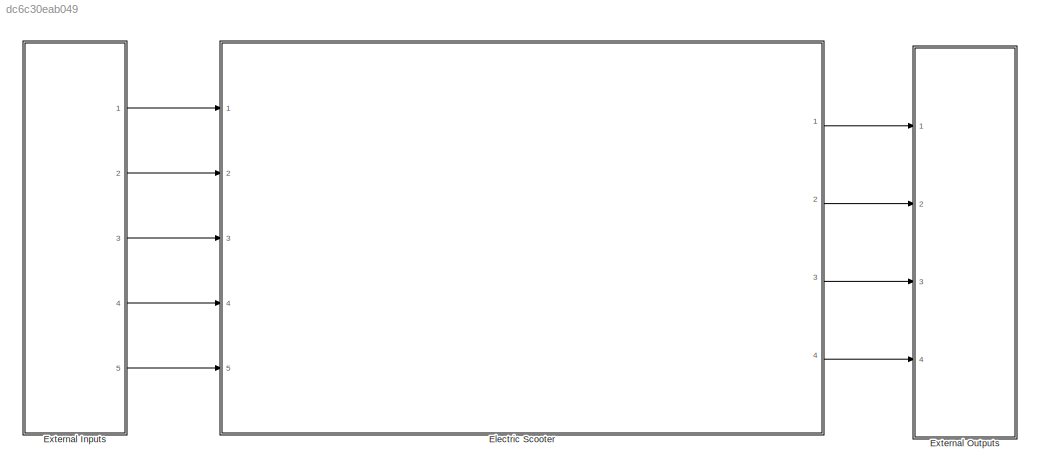
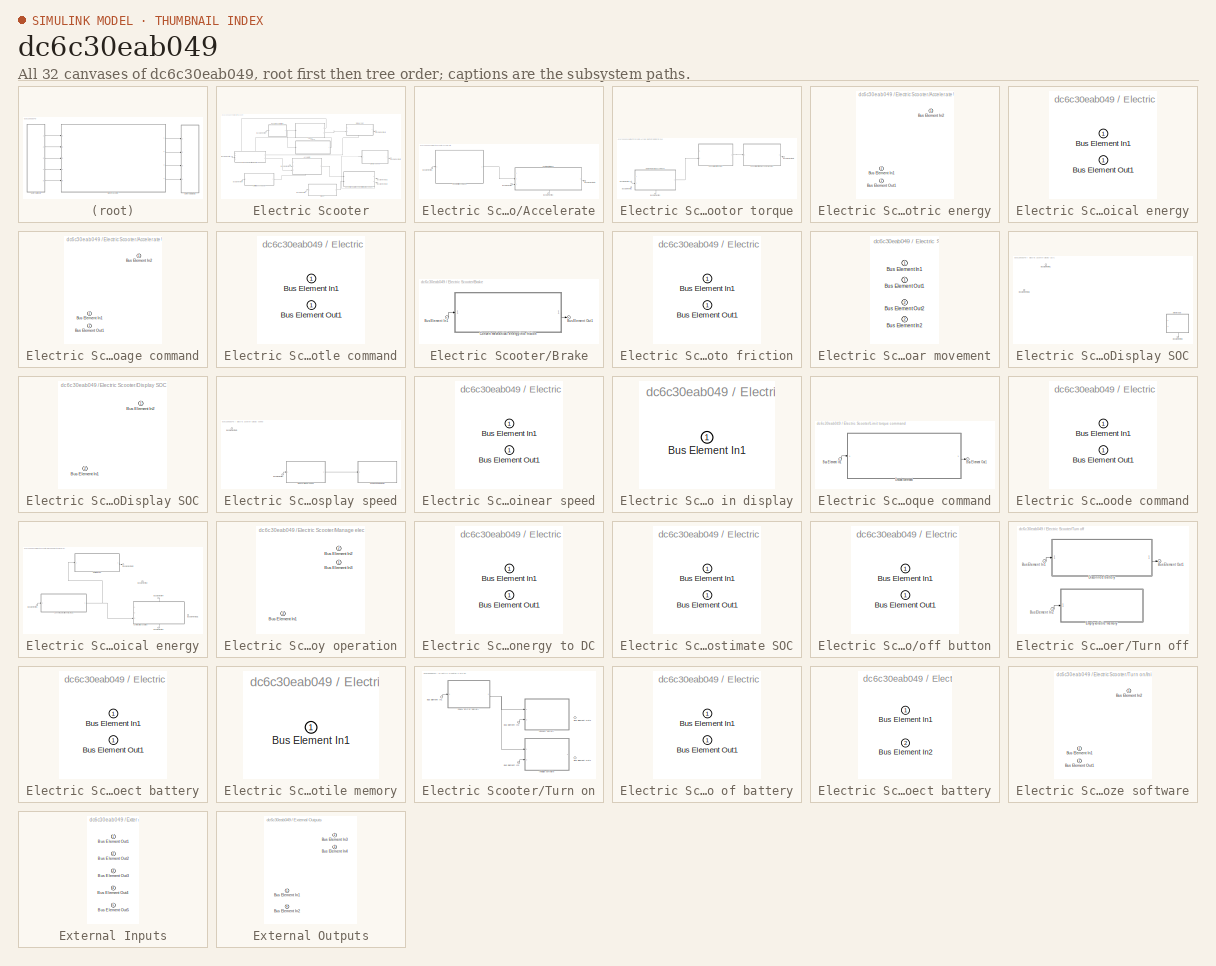
[diagram: thumbnail index - all 32 canvases of the model, root first then tree order]
MODEL slx_dc6c30eab049
KIND model
CONFIG AbsTol = auto
CONFIG EnableMultiTasking = off
CONFIG FixedStep = auto
CONFIG MaxStep = auto
CONFIG MinStep = auto
CONFIG RelTol = 1e-3
CONFIG SampleTimeConstraint = Unconstrained
CONFIG SolverName = VariableStepAuto
CONFIG StartTime = 0.0
CONFIG StopTime = 10.0
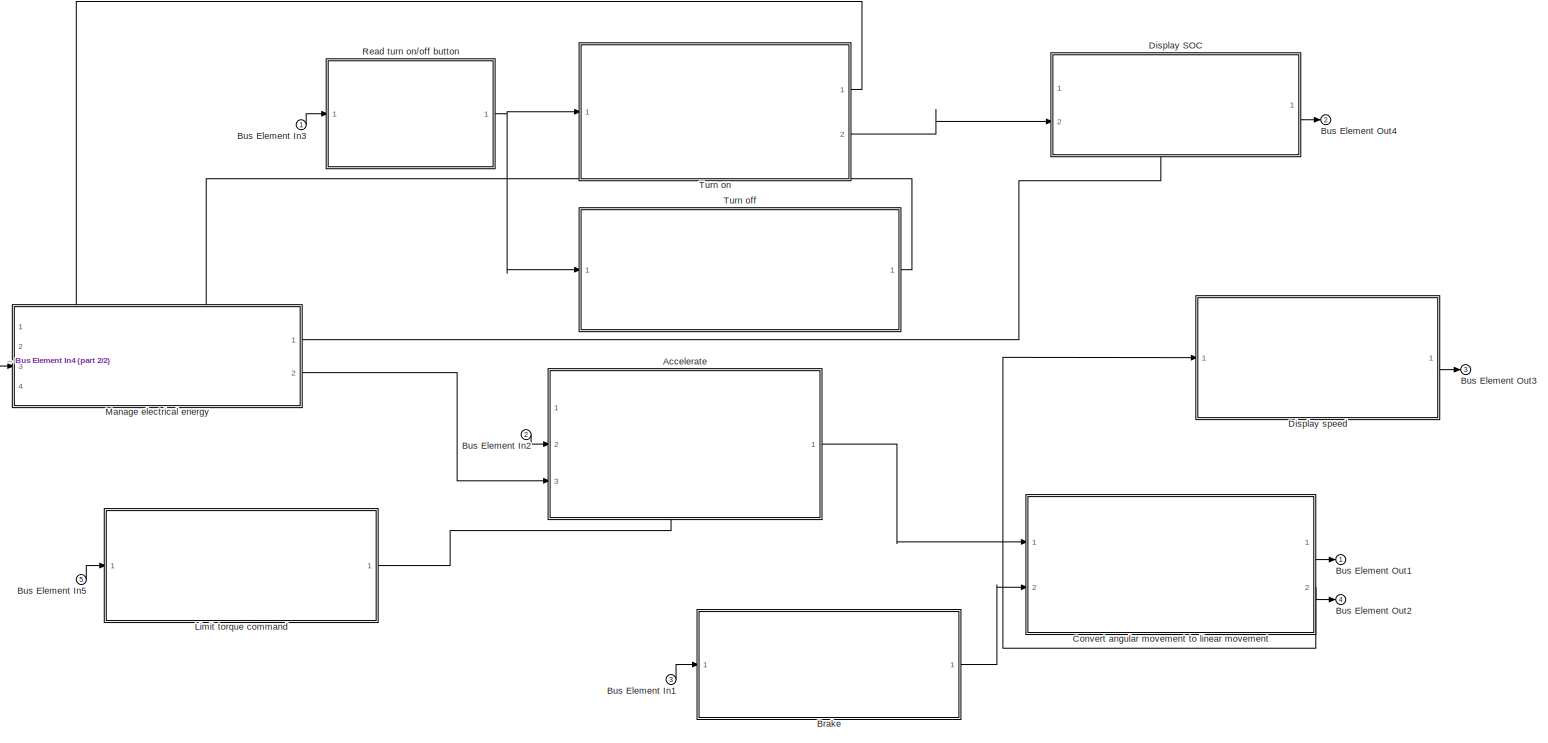
[diagram: Electric Scooter - part 1/2, most of the canvas]
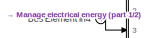
[diagram: Electric Scooter - part 2/2, middle left region]
BLOCK [SubSystem] Electric Scooter
  PortSchema = {"entries":[{"content":{"headerSize":26,"margin":15,"minimumSpacing":25,"sides":[{"content":{"connectorIds":["In1","In2","In3","In4","In5"]},"type":"ConnectorPlacement.EquallySpacedRectSide","uuid":"77baa894-24de-420f-bb05-d29ca1eca7c3"},{"content":{"connectorIds":["Out1","Out2","Out3","Out4"],"side":"RIGHT"},"type":"ConnectorPlacement.EquallySpacedRectSide","uuid":"fcd1216d-879c-477b-b249-00119a9...<+333ch>
  Ports = [5, 4]
  RequestExecContextInheritance = off
BLOCK [SubSystem] Electric Scooter/Accelerate
  PortSchema = {"entries":[{"content":{"headerSize":26,"margin":15,"minimumSpacing":25,"sides":[{"content":{"connectorIds":["In2","In3"]},"type":"ConnectorPlacement.EquallySpacedRectSide","uuid":"77baa894-24de-420f-bb05-d29ca1eca7c3"},{"content":{"connectorIds":["Out1"],"side":"RIGHT"},"type":"ConnectorPlacement.EquallySpacedRectSide","uuid":"fcd1216d-879c-477b-b249-00119a9fcd22"},{"content":{"connectorIds":[],"...<+443ch>
  Ports = [3, 1]
  RequestExecContextInheritance = off
BLOCK [Inport] Electric Scooter/Accelerate/Bus Element In1
  Port = 2
BLOCK [Inport] Electric Scooter/Accelerate/Bus Element In2
  Port = 3
BLOCK [Inport] Electric Scooter/Accelerate/Bus Element In3
BLOCK [Outport] Electric Scooter/Accelerate/Bus Element Out1
BLOCK [SubSystem] Electric Scooter/Accelerate/Control motor torque
  PortSchema = {"entries":[{"content":{"headerSize":26,"margin":15,"minimumSpacing":25,"sides":[{"content":{"connectorIds":["In2","In3"]},"type":"ConnectorPlacement.EquallySpacedRectSide","uuid":"77baa894-24de-420f-bb05-d29ca1eca7c3"},{"content":{"connectorIds":["Out1"],"side":"RIGHT"},"type":"ConnectorPlacement.EquallySpacedRectSide","uuid":"fcd1216d-879c-477b-b249-00119a9fcd22"},{"content":{"connectorIds":[],"...<+443ch>
  Ports = [3, 1]
  RequestExecContextInheritance = off
BLOCK [Inport] Electric Scooter/Accelerate/Control motor torque/Bus Element In1
  Port = 2
BLOCK [Inport] Electric Scooter/Accelerate/Control motor torque/Bus Element In2
  Port = 3
BLOCK [Inport] Electric Scooter/Accelerate/Control motor torque/Bus Element In3
BLOCK [Outport] Electric Scooter/Accelerate/Control motor torque/Bus Element Out1
BLOCK [SubSystem] Electric Scooter/Accelerate/Control motor torque/Convert electric energy
  PortSchema = {"entries":[{"content":{"headerSize":26,"margin":15,"minimumSpacing":25,"sides":[{"content":{"connectorIds":["In1","In2"]},"type":"ConnectorPlacement.EquallySpacedRectSide","uuid":"77baa894-24de-420f-bb05-d29ca1eca7c3"},{"content":{"connectorIds":["Out1"],"side":"RIGHT"},"type":"ConnectorPlacement.EquallySpacedRectSide","uuid":"fcd1216d-879c-477b-b249-00119a9fcd22"},{"content":{"connectorIds":[],"...<+294ch>
  Ports = [2, 1]
  RequestExecContextInheritance = off
BLOCK [Inport] Electric Scooter/Accelerate/Control motor torque/Convert electric energy/Bus Element In1
  Port = 2
BLOCK [Inport] Electric Scooter/Accelerate/Control motor torque/Convert electric energy/Bus Element In2
BLOCK [Outport] Electric Scooter/Accelerate/Control motor torque/Convert electric energy/Bus Element Out1
BLOCK [SubSystem] Electric Scooter/Accelerate/Control motor torque/Convert electric to mechanical energy
  PortSchema = {"entries":[{"content":{"headerSize":26,"margin":15,"minimumSpacing":25,"sides":[{"content":{"connectorIds":["In1"]},"type":"ConnectorPlacement.EquallySpacedRectSide","uuid":"77baa894-24de-420f-bb05-d29ca1eca7c3"},{"content":{"connectorIds":["Out1"],"side":"RIGHT"},"type":"ConnectorPlacement.EquallySpacedRectSide","uuid":"fcd1216d-879c-477b-b249-00119a9fcd22"},{"content":{"connectorIds":[],"side":...<+432ch>
  Ports = [1, 1]
  RequestExecContextInheritance = off
BLOCK [Inport] Electric Scooter/Accelerate/Control motor torque/Convert electric to mechanical energy/Bus Element In1
BLOCK [Outport] Electric Scooter/Accelerate/Control motor torque/Convert electric to mechanical energy/Bus Element Out1
BLOCK [SubSystem] Electric Scooter/Accelerate/Control motor torque/Obtain motor voltage command
  PortSchema = {"entries":[{"content":{"headerSize":26,"margin":15,"minimumSpacing":25,"sides":[{"content":{"connectorIds":["In2"]},"type":"ConnectorPlacement.EquallySpacedRectSide","uuid":"77baa894-24de-420f-bb05-d29ca1eca7c3"},{"content":{"connectorIds":["Out1"],"side":"RIGHT"},"type":"ConnectorPlacement.EquallySpacedRectSide","uuid":"fcd1216d-879c-477b-b249-00119a9fcd22"},{"content":{"connectorIds":[],"side":...<+437ch>
  Ports = [2, 1]
  RequestExecContextInheritance = off
BLOCK [Inport] Electric Scooter/Accelerate/Control motor torque/Obtain motor voltage command/Bus Element In1
  Port = 2
BLOCK [Inport] Electric Scooter/Accelerate/Control motor torque/Obtain motor voltage command/Bus Element In2
BLOCK [Outport] Electric Scooter/Accelerate/Control motor torque/Obtain motor voltage command/Bus Element Out1
BLOCK [SubSystem] Electric Scooter/Accelerate/Read throttle command
  PortSchema = {"entries":[{"content":{"headerSize":26,"margin":15,"minimumSpacing":25,"sides":[{"content":{"connectorIds":["In1"]},"type":"ConnectorPlacement.EquallySpacedRectSide","uuid":"77baa894-24de-420f-bb05-d29ca1eca7c3"},{"content":{"connectorIds":["Out1"],"side":"RIGHT"},"type":"ConnectorPlacement.EquallySpacedRectSide","uuid":"fcd1216d-879c-477b-b249-00119a9fcd22"},{"content":{"connectorIds":[],"side":...<+288ch>  <repeated x12 — deduplicated; at blocks: Read throttle command, Brake, Convert mechanical energy into friction, Display speed, Measure linear speed, Limit torque command, Decode command, Convert AC electric energy to DC, Estimate SOC, Read turn on/off button, Turn off, Disconnect battery>
  Ports = [1, 1]
  RequestExecContextInheritance = off
BLOCK [Inport] Electric Scooter/Accelerate/Read throttle command/Bus Element In1
BLOCK [Outport] Electric Scooter/Accelerate/Read throttle command/Bus Element Out1
BLOCK [SubSystem] Electric Scooter/Brake
  Ports = [1, 1]
  RequestExecContextInheritance = off
BLOCK [Inport] Electric Scooter/Brake/Bus Element In1
BLOCK [Outport] Electric Scooter/Brake/Bus Element Out1
BLOCK [SubSystem] Electric Scooter/Brake/Convert mechanical energy into friction
  Ports = [1, 1]
  RequestExecContextInheritance = off
BLOCK [Inport] Electric Scooter/Brake/Convert mechanical energy into friction/Bus Element In1
BLOCK [Outport] Electric Scooter/Brake/Convert mechanical energy into friction/Bus Element Out1
BLOCK [Inport] Electric Scooter/Bus Element In1
  Port = 3
BLOCK [Inport] Electric Scooter/Bus Element In2
  Port = 2
BLOCK [Inport] Electric Scooter/Bus Element In3
BLOCK [Inport] Electric Scooter/Bus Element In4
  Port = 4
BLOCK [Inport] Electric Scooter/Bus Element In5
  Port = 5
BLOCK [Outport] Electric Scooter/Bus Element Out1
BLOCK [Outport] Electric Scooter/Bus Element Out2
  Port = 4
BLOCK [Outport] Electric Scooter/Bus Element Out3
  Port = 3
BLOCK [Outport] Electric Scooter/Bus Element Out4
  Port = 2
BLOCK [SubSystem] Electric Scooter/Convert angular movement to linear movement
  PortSchema = {"entries":[{"content":{"headerSize":26,"margin":15,"minimumSpacing":25,"sides":[{"content":{"connectorIds":["In1","In2"]},"type":"ConnectorPlacement.EquallySpacedRectSide","uuid":"77baa894-24de-420f-bb05-d29ca1eca7c3"},{"content":{"connectorIds":["Out1","Out2"],"side":"RIGHT"},"type":"ConnectorPlacement.EquallySpacedRectSide","uuid":"fcd1216d-879c-477b-b249-00119a9fcd22"},{"content":{"connectorId...<+301ch>
  Ports = [2, 2]
  RequestExecContextInheritance = off
BLOCK [Inport] Electric Scooter/Convert angular movement to linear movement/Bus Element In1
BLOCK [Inport] Electric Scooter/Convert angular movement to linear movement/Bus Element In2
  Port = 2
BLOCK [Outport] Electric Scooter/Convert angular movement to linear movement/Bus Element Out1
BLOCK [Outport] Electric Scooter/Convert angular movement to linear movement/Bus Element Out2
  Port = 2
BLOCK [SubSystem] Electric Scooter/Display SOC
  PortSchema = {"entries":[{"content":{"headerSize":26,"margin":15,"minimumSpacing":25,"sides":[{"content":{"connectorIds":["In2"]},"type":"ConnectorPlacement.EquallySpacedRectSide","uuid":"77baa894-24de-420f-bb05-d29ca1eca7c3"},{"content":{"connectorIds":["Out1"],"side":"RIGHT"},"type":"ConnectorPlacement.EquallySpacedRectSide","uuid":"fcd1216d-879c-477b-b249-00119a9fcd22"},{"content":{"connectorIds":[],"side":...<+437ch>
  Ports = [2, 1]
  RequestExecContextInheritance = off
BLOCK [Inport] Electric Scooter/Display SOC/Bus Element In1
  Port = 2
BLOCK [Inport] Electric Scooter/Display SOC/Bus Element In2
BLOCK [Outport] Electric Scooter/Display SOC/Bus Element Out1
BLOCK [SubSystem] Electric Scooter/Display SOC/Display SOC
  PortSchema = {"entries":[{"content":{"headerSize":26,"margin":15,"minimumSpacing":25,"sides":[{"content":{"connectorIds":["In2"]},"type":"ConnectorPlacement.EquallySpacedRectSide","uuid":"77baa894-24de-420f-bb05-d29ca1eca7c3"},{"content":{"connectorIds":[],"side":"RIGHT"},"type":"ConnectorPlacement.EquallySpacedRectSide","uuid":"fcd1216d-879c-477b-b249-00119a9fcd22"},{"content":{"connectorIds":[],"side":"TOP"}...<+431ch>
  Ports = [2]
  RequestExecContextInheritance = off
BLOCK [Inport] Electric Scooter/Display SOC/Display SOC/Bus Element In1
  Port = 2
BLOCK [Inport] Electric Scooter/Display SOC/Display SOC/Bus Element In2
BLOCK [SubSystem] Electric Scooter/Display speed
  Ports = [1, 1]
  RequestExecContextInheritance = off
BLOCK [Inport] Electric Scooter/Display speed/Bus Element In1
BLOCK [Outport] Electric Scooter/Display speed/Bus Element Out1
BLOCK [SubSystem] Electric Scooter/Display speed/Measure linear speed
  Ports = [1, 1]
  RequestExecContextInheritance = off
BLOCK [Inport] Electric Scooter/Display speed/Measure linear speed/Bus Element In1
BLOCK [Outport] Electric Scooter/Display speed/Measure linear speed/Bus Element Out1
BLOCK [SubSystem] Electric Scooter/Display speed/Show speed in display
  PortSchema = {"entries":[{"content":{"headerSize":26,"margin":15,"minimumSpacing":25,"sides":[{"content":{"connectorIds":["In1"]},"type":"ConnectorPlacement.EquallySpacedRectSide","uuid":"77baa894-24de-420f-bb05-d29ca1eca7c3"},{"content":{"connectorIds":[],"side":"RIGHT"},"type":"ConnectorPlacement.EquallySpacedRectSide","uuid":"fcd1216d-879c-477b-b249-00119a9fcd22"},{"content":{"connectorIds":[],"side":"TOP"}...<+282ch>
  Ports = [1]
  RequestExecContextInheritance = off
BLOCK [Inport] Electric Scooter/Display speed/Show speed in display/Bus Element In1
BLOCK [SubSystem] Electric Scooter/Limit torque command
  Ports = [1, 1]
  RequestExecContextInheritance = off
BLOCK [Inport] Electric Scooter/Limit torque command/Bus Element In1
BLOCK [Outport] Electric Scooter/Limit torque command/Bus Element Out1
BLOCK [SubSystem] Electric Scooter/Limit torque command/Decode command
  Ports = [1, 1]
  RequestExecContextInheritance = off
BLOCK [Inport] Electric Scooter/Limit torque command/Decode command/Bus Element In1
BLOCK [Outport] Electric Scooter/Limit torque command/Decode command/Bus Element Out1
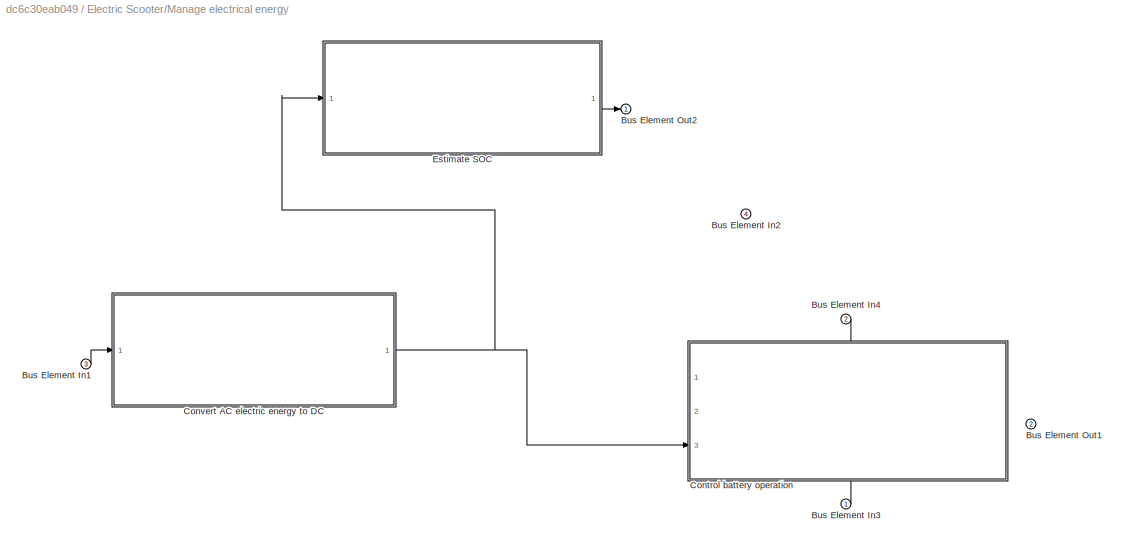
BLOCK [SubSystem] Electric Scooter/Manage electrical energy
  PortSchema = {"entries":[{"content":{"headerSize":26,"margin":15,"minimumSpacing":25,"sides":[{"content":{"connectorIds":["In3","In4"]},"type":"ConnectorPlacement.EquallySpacedRectSide","uuid":"77baa894-24de-420f-bb05-d29ca1eca7c3"},{"content":{"connectorIds":["Out1","Out2"],"side":"RIGHT"},"type":"ConnectorPlacement.EquallySpacedRectSide","uuid":"fcd1216d-879c-477b-b249-00119a9fcd22"},{"content":{"connectorId...<+312ch>
  Ports = [4, 2]
  RequestExecContextInheritance = off
BLOCK [Inport] Electric Scooter/Manage electrical energy/Bus Element In1
  Port = 3
BLOCK [Inport] Electric Scooter/Manage electrical energy/Bus Element In2
  Port = 4
BLOCK [Inport] Electric Scooter/Manage electrical energy/Bus Element In3
BLOCK [Inport] Electric Scooter/Manage electrical energy/Bus Element In4
  Port = 2
BLOCK [Outport] Electric Scooter/Manage electrical energy/Bus Element Out1
  Port = 2
BLOCK [Outport] Electric Scooter/Manage electrical energy/Bus Element Out2
BLOCK [SubSystem] Electric Scooter/Manage electrical energy/Control battery operation
  PortSchema = {"entries":[{"content":{"headerSize":26,"margin":15,"minimumSpacing":25,"sides":[{"content":{"connectorIds":["In3"]},"type":"ConnectorPlacement.EquallySpacedRectSide","uuid":"77baa894-24de-420f-bb05-d29ca1eca7c3"},{"content":{"connectorIds":[],"side":"RIGHT"},"type":"ConnectorPlacement.EquallySpacedRectSide","uuid":"fcd1216d-879c-477b-b249-00119a9fcd22"},{"content":{"connectorIds":["In1"],"side":"...<+436ch>
  Ports = [3]
  RequestExecContextInheritance = off
BLOCK [Inport] Electric Scooter/Manage electrical energy/Control battery operation/Bus Element In1
  Port = 3
BLOCK [Inport] Electric Scooter/Manage electrical energy/Control battery operation/Bus Element In2
  Port = 2
BLOCK [Inport] Electric Scooter/Manage electrical energy/Control battery operation/Bus Element In3
BLOCK [SubSystem] Electric Scooter/Manage electrical energy/Convert AC electric energy to DC
  Ports = [1, 1]
  RequestExecContextInheritance = off
BLOCK [Inport] Electric Scooter/Manage electrical energy/Convert AC electric energy to DC/Bus Element In1
BLOCK [Outport] Electric Scooter/Manage electrical energy/Convert AC electric energy to DC/Bus Element Out1
BLOCK [SubSystem] Electric Scooter/Manage electrical energy/Estimate SOC
  Ports = [1, 1]
  RequestExecContextInheritance = off
BLOCK [Inport] Electric Scooter/Manage electrical energy/Estimate SOC/Bus Element In1
BLOCK [Outport] Electric Scooter/Manage electrical energy/Estimate SOC/Bus Element Out1
BLOCK [SubSystem] Electric Scooter/Read turn on//off button
  Ports = [1, 1]
  RequestExecContextInheritance = off
BLOCK [Inport] Electric Scooter/Read turn on//off button/Bus Element In1
BLOCK [Outport] Electric Scooter/Read turn on//off button/Bus Element Out1
BLOCK [SubSystem] Electric Scooter/Turn off
  Ports = [1, 1]
  RequestExecContextInheritance = off
BLOCK [Inport] Electric Scooter/Turn off/Bus Element In1
BLOCK [Inport] Electric Scooter/Turn off/Bus Element In2
BLOCK [Outport] Electric Scooter/Turn off/Bus Element Out1
BLOCK [SubSystem] Electric Scooter/Turn off/Disconnect battery
  Ports = [1, 1]
  RequestExecContextInheritance = off
BLOCK [Inport] Electric Scooter/Turn off/Disconnect battery/Bus Element In1
BLOCK [Outport] Electric Scooter/Turn off/Disconnect battery/Bus Element Out1
BLOCK [SubSystem] Electric Scooter/Turn off/Empty volatile memory
  PortSchema = {"entries":[{"content":{"headerSize":26,"margin":15,"minimumSpacing":25,"sides":[{"content":{"connectorIds":["In1"]},"type":"ConnectorPlacement.EquallySpacedRectSide","uuid":"77baa894-24de-420f-bb05-d29ca1eca7c3"},{"content":{"connectorIds":[],"side":"RIGHT"},"type":"ConnectorPlacement.EquallySpacedRectSide","uuid":"fcd1216d-879c-477b-b249-00119a9fcd22"},{"content":{"connectorIds":[],"side":"TOP"}...<+282ch>
  Ports = [1]
  RequestExecContextInheritance = off
BLOCK [Inport] Electric Scooter/Turn off/Empty volatile memory/Bus Element In1
BLOCK [SubSystem] Electric Scooter/Turn on
  PortSchema = {"entries":[{"content":{"headerSize":26,"margin":15,"minimumSpacing":25,"sides":[{"content":{"connectorIds":["In1"]},"type":"ConnectorPlacement.EquallySpacedRectSide","uuid":"77baa894-24de-420f-bb05-d29ca1eca7c3"},{"content":{"connectorIds":["Out1","Out2"],"side":"RIGHT"},"type":"ConnectorPlacement.EquallySpacedRectSide","uuid":"fcd1216d-879c-477b-b249-00119a9fcd22"},{"content":{"connectorIds":[],...<+295ch>
  Ports = [1, 2]
  RequestExecContextInheritance = off
BLOCK [Inport] Electric Scooter/Turn on/Bus Element In1
BLOCK [Inport] Electric Scooter/Turn on/Bus Element In2
BLOCK [Inport] Electric Scooter/Turn on/Bus Element In3
BLOCK [Outport] Electric Scooter/Turn on/Bus Element Out1
  Port = 2
BLOCK [Outport] Electric Scooter/Turn on/Bus Element Out2
BLOCK [SubSystem] Electric Scooter/Turn on/Check SOC of battery
  PortSchema = {"entries":[{"content":{"headerSize":26,"margin":15,"minimumSpacing":25,"sides":[{"content":{"connectorIds":["In1"]},"type":"ConnectorPlacement.EquallySpacedRectSide","uuid":"77baa894-24de-420f-bb05-d29ca1eca7c3"},{"content":{"connectorIds":[],"side":"RIGHT"},"type":"ConnectorPlacement.EquallySpacedRectSide","uuid":"fcd1216d-879c-477b-b249-00119a9fcd22"},{"content":{"connectorIds":[],"side":"TOP"}...<+432ch>
  Ports = [1, 1]
  RequestExecContextInheritance = off
BLOCK [Inport] Electric Scooter/Turn on/Check SOC of battery/Bus Element In1
BLOCK [Outport] Electric Scooter/Turn on/Check SOC of battery/Bus Element Out1
BLOCK [SubSystem] Electric Scooter/Turn on/Connect battery
  PortSchema = {"entries":[{"content":{"headerSize":26,"margin":15,"minimumSpacing":25,"sides":[{"content":{"connectorIds":["In1","In2"]},"type":"ConnectorPlacement.EquallySpacedRectSide","uuid":"77baa894-24de-420f-bb05-d29ca1eca7c3"},{"content":{"connectorIds":[],"side":"RIGHT"},"type":"ConnectorPlacement.EquallySpacedRectSide","uuid":"fcd1216d-879c-477b-b249-00119a9fcd22"},{"content":{"connectorIds":[],"side":...<+288ch>
  Ports = [2]
  RequestExecContextInheritance = off
BLOCK [Inport] Electric Scooter/Turn on/Connect battery/Bus Element In1
BLOCK [Inport] Electric Scooter/Turn on/Connect battery/Bus Element In2
  Port = 2
BLOCK [SubSystem] Electric Scooter/Turn on/Initialize software
  PortSchema = {"entries":[{"content":{"headerSize":26,"margin":15,"minimumSpacing":25,"sides":[{"content":{"connectorIds":["In1","In2"]},"type":"ConnectorPlacement.EquallySpacedRectSide","uuid":"77baa894-24de-420f-bb05-d29ca1eca7c3"},{"content":{"connectorIds":["Out1"],"side":"RIGHT"},"type":"ConnectorPlacement.EquallySpacedRectSide","uuid":"fcd1216d-879c-477b-b249-00119a9fcd22"},{"content":{"connectorIds":[],"...<+294ch>
  Ports = [2, 1]
  RequestExecContextInheritance = off
BLOCK [Inport] Electric Scooter/Turn on/Initialize software/Bus Element In1
  Port = 2
BLOCK [Inport] Electric Scooter/Turn on/Initialize software/Bus Element In2
BLOCK [Outport] Electric Scooter/Turn on/Initialize software/Bus Element Out1
BLOCK [SubSystem] External Inputs
  PortSchema = {"entries":[{"content":{"headerSize":26,"margin":15,"minimumSpacing":25,"sides":[{"content":{"connectorIds":[]},"type":"ConnectorPlacement.EquallySpacedRectSide","uuid":"77baa894-24de-420f-bb05-d29ca1eca7c3"},{"content":{"connectorIds":["Out1","Out2","Out3","Out4","Out5"],"side":"RIGHT"},"type":"ConnectorPlacement.EquallySpacedRectSide","uuid":"fcd1216d-879c-477b-b249-00119a9fcd22"},{"content":{"c...<+311ch>
  Ports = [0, 5]
  RequestExecContextInheritance = off
BLOCK [Outport] External Inputs/Bus Element Out1
BLOCK [Outport] External Inputs/Bus Element Out2
  Port = 2
BLOCK [Outport] External Inputs/Bus Element Out3
  Port = 3
BLOCK [Outport] External Inputs/Bus Element Out4
  Port = 4
BLOCK [Outport] External Inputs/Bus Element Out5
  Port = 5
BLOCK [SubSystem] External Outputs
  PortSchema = {"entries":[{"content":{"headerSize":26,"margin":15,"minimumSpacing":25,"sides":[{"content":{"connectorIds":["In1","In2","In3","In4"]},"type":"ConnectorPlacement.EquallySpacedRectSide","uuid":"77baa894-24de-420f-bb05-d29ca1eca7c3"},{"content":{"connectorIds":[],"side":"RIGHT"},"type":"ConnectorPlacement.EquallySpacedRectSide","uuid":"fcd1216d-879c-477b-b249-00119a9fcd22"},{"content":{"connectorIds...<+300ch>
  Ports = [4]
  RequestExecContextInheritance = off
BLOCK [Inport] External Outputs/Bus Element In1
BLOCK [Inport] External Outputs/Bus Element In2
  Port = 4
BLOCK [Inport] External Outputs/Bus Element In3
  Port = 2
BLOCK [Inport] External Outputs/Bus Element In4
  Port = 3
LINE Electric Scooter/Accelerate/Bus Element In1:1 -> Electric Scooter/Accelerate/Read throttle command:1
LINE Electric Scooter/Accelerate/Bus Element In2:1 -> Electric Scooter/Accelerate/Control motor torque:3
LINE Electric Scooter/Accelerate/Bus Element In3:1 -> Electric Scooter/Accelerate/Control motor torque:1
LINE Electric Scooter/Accelerate/Control motor torque/Bus Element In1:1 -> Electric Scooter/Accelerate/Control motor torque/Obtain motor voltage command:2
LINE Electric Scooter/Accelerate/Control motor torque/Bus Element In3:1 -> Electric Scooter/Accelerate/Control motor torque/Obtain motor voltage command:1
LINE Electric Scooter/Accelerate/Control motor torque/Convert electric energy:1 -> Electric Scooter/Accelerate/Control motor torque/Convert electric to mechanical energy:1
LINE Electric Scooter/Accelerate/Control motor torque/Convert electric to mechanical energy:1 -> Electric Scooter/Accelerate/Control motor torque/Bus Element Out1:1
LINE Electric Scooter/Accelerate/Control motor torque/Obtain motor voltage command:1 -> Electric Scooter/Accelerate/Control motor torque/Convert electric energy:2
LINE Electric Scooter/Accelerate/Control motor torque:1 -> Electric Scooter/Accelerate/Bus Element Out1:1
LINE Electric Scooter/Accelerate/Read throttle command:1 -> Electric Scooter/Accelerate/Control motor torque:2
LINE Electric Scooter/Accelerate:1 -> Electric Scooter/Convert angular movement to linear movement:1
LINE Electric Scooter/Brake/Bus Element In1:1 -> Electric Scooter/Brake/Convert mechanical energy into friction:1
LINE Electric Scooter/Brake/Convert mechanical energy into friction:1 -> Electric Scooter/Brake/Bus Element Out1:1
LINE Electric Scooter/Brake:1 -> Electric Scooter/Convert angular movement to linear movement:2
LINE Electric Scooter/Bus Element In1:1 -> Electric Scooter/Brake:1
LINE Electric Scooter/Bus Element In2:1 -> Electric Scooter/Accelerate:2
LINE Electric Scooter/Bus Element In3:1 -> Electric Scooter/Read turn on//off button:1
LINE Electric Scooter/Bus Element In4:1 -> Electric Scooter/Manage electrical energy:3
LINE Electric Scooter/Bus Element In5:1 -> Electric Scooter/Limit torque command:1
LINE Electric Scooter/Convert angular movement to linear movement:1 -> Electric Scooter/Bus Element Out1:1
NET Electric Scooter/Convert angular movement to linear movement:2 -> Electric Scooter/Bus Element Out2:1, Electric Scooter/Display speed:1
LINE Electric Scooter/Display SOC/Bus Element In2:1 -> Electric Scooter/Display SOC/Display SOC:1
LINE Electric Scooter/Display SOC:1 -> Electric Scooter/Bus Element Out4:1
LINE Electric Scooter/Display speed/Bus Element In1:1 -> Electric Scooter/Display speed/Measure linear speed:1
LINE Electric Scooter/Display speed/Measure linear speed:1 -> Electric Scooter/Display speed/Show speed in display:1
LINE Electric Scooter/Display speed:1 -> Electric Scooter/Bus Element Out3:1
LINE Electric Scooter/Limit torque command/Bus Element In1:1 -> Electric Scooter/Limit torque command/Decode command:1
LINE Electric Scooter/Limit torque command/Decode command:1 -> Electric Scooter/Limit torque command/Bus Element Out1:1
LINE Electric Scooter/Limit torque command:1 -> Electric Scooter/Accelerate:1
LINE Electric Scooter/Manage electrical energy/Bus Element In1:1 -> Electric Scooter/Manage electrical energy/Convert AC electric energy to DC:1
LINE Electric Scooter/Manage electrical energy/Bus Element In3:1 -> Electric Scooter/Manage electrical energy/Control battery operation:2
LINE Electric Scooter/Manage electrical energy/Bus Element In4:1 -> Electric Scooter/Manage electrical energy/Control battery operation:1
NET Electric Scooter/Manage electrical energy/Convert AC electric energy to DC:1 -> Electric Scooter/Manage electrical energy/Control battery operation:3, Electric Scooter/Manage electrical energy/Estimate SOC:1
LINE Electric Scooter/Manage electrical energy/Estimate SOC:1 -> Electric Scooter/Manage electrical energy/Bus Element Out2:1
LINE Electric Scooter/Manage electrical energy:1 -> Electric Scooter/Display SOC:1
LINE Electric Scooter/Manage electrical energy:2 -> Electric Scooter/Accelerate:3
NET Electric Scooter/Read turn on//off button:1 -> Electric Scooter/Turn off:1, Electric Scooter/Turn on:1
LINE Electric Scooter/Turn off/Bus Element In1:1 -> Electric Scooter/Turn off/Disconnect battery:1
LINE Electric Scooter/Turn off/Bus Element In2:1 -> Electric Scooter/Turn off/Empty volatile memory:1
LINE Electric Scooter/Turn off/Disconnect battery:1 -> Electric Scooter/Turn off/Bus Element Out1:1
LINE Electric Scooter/Turn off:1 -> Electric Scooter/Manage electrical energy:2
LINE Electric Scooter/Turn on/Bus Element In1:1 -> Electric Scooter/Turn on/Check SOC of battery:1
LINE Electric Scooter/Turn on/Bus Element In2:1 -> Electric Scooter/Turn on/Connect battery:2
LINE Electric Scooter/Turn on/Bus Element In3:1 -> Electric Scooter/Turn on/Initialize software:2
NET Electric Scooter/Turn on/Check SOC of battery:1 -> Electric Scooter/Turn on/Connect battery:1, Electric Scooter/Turn on/Initialize software:1
LINE Electric Scooter/Turn on:1 -> Electric Scooter/Manage electrical energy:1
LINE Electric Scooter/Turn on:2 -> Electric Scooter/Display SOC:2
LINE Electric Scooter:1 -> External Outputs:1
LINE Electric Scooter:2 -> External Outputs:2
LINE Electric Scooter:3 -> External Outputs:3
LINE Electric Scooter:4 -> External Outputs:4
LINE External Inputs:1 -> Electric Scooter:1
LINE External Inputs:2 -> Electric Scooter:2
LINE External Inputs:3 -> Electric Scooter:3
LINE External Inputs:4 -> Electric Scooter:4
LINE External Inputs:5 -> Electric Scooter:5
note: NET lines group one-source signal fan-out (src -> all destinations, sorted); 1:1 wires keep LINE
